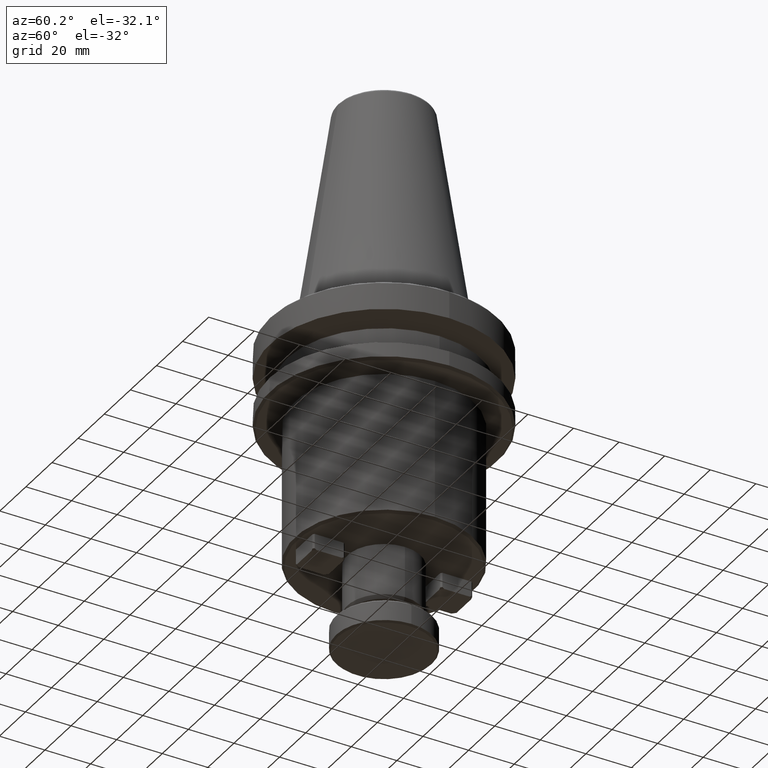
[diagram: clean part render]
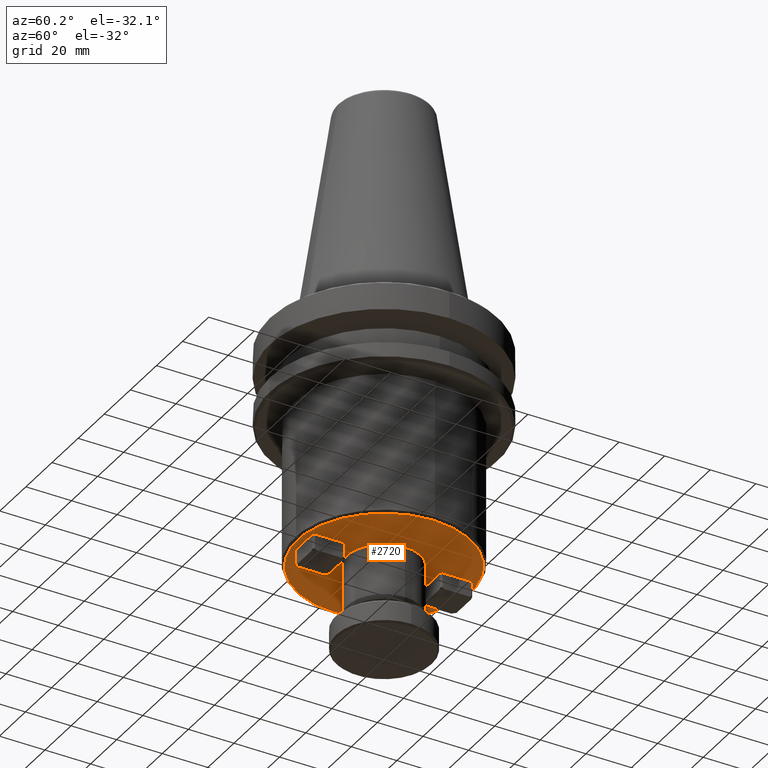
[diagram: same view with one face highlighted and labeled with its STEP entity id]
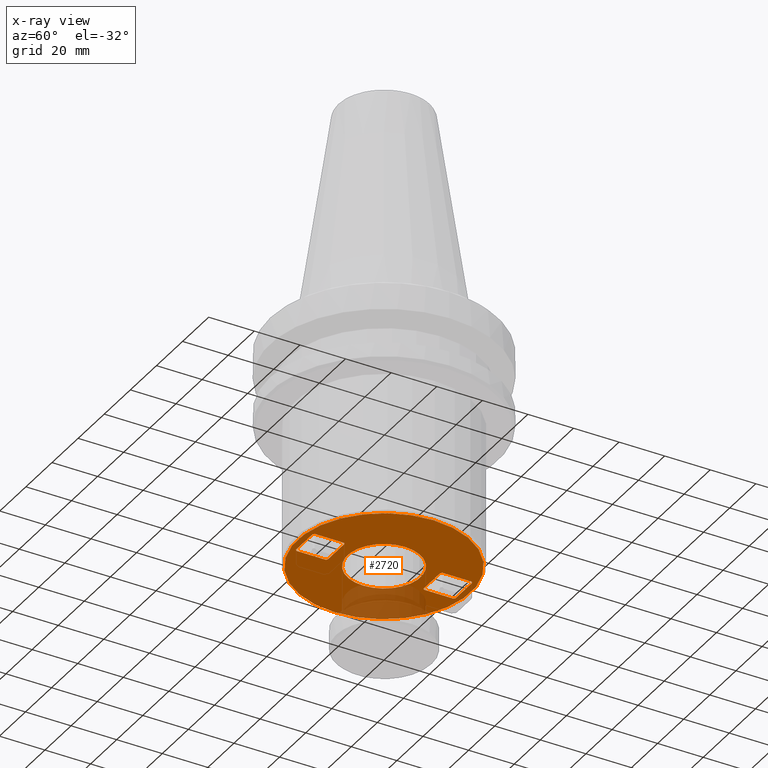
[diagram: x-ray of the same camera — body ghosted, the highlighted face saturated]
A machine part, auxiliary view. The second image highlights one B-rep face of the part: STEP entity #2720.
The next image is the same camera in x-ray: the body ghosted, the highlighted face saturated — about 20% of this face is hidden behind the body in this view.
In plain terms, the highlighted planar face has unit normal (0, 0, -1).
Its self-contained STEP definition (entity closure, byte-faithful):
#7 = ORIENTED_EDGE ( 'NONE', *, *, #1402, .T. ) ;
#44 = ORIENTED_EDGE ( 'NONE', *, *, #1321, .T. ) ;
#63 = VERTEX_POINT ( 'NONE', #2098 ) ;
#74 = VERTEX_POINT ( 'NONE', #2305 ) ;
#83 = LINE ( 'NONE', #475, #2435 ) ;
#86 = LINE ( 'NONE', #1375, #2302 ) ;
#90 = VERTEX_POINT ( 'NONE', #2089 ) ;
#93 = VERTEX_POINT ( 'NONE', #2299 ) ;
#102 = VERTEX_POINT ( 'NONE', #2218 ) ;
#143 = DIRECTION ( 'NONE',  ( 0.7071067811865638900, -0.7071067811865311400, -0.0000000000000000000 ) ) ;
#147 = CARTESIAN_POINT ( 'NONE',  ( 7.000000000000000000, 34.40000000000001300, -100.0000000000000000 ) ) ;
#158 = AXIS2_PLACEMENT_3D ( 'NONE', #2666, #1684, #2349 ) ;
#162 = VECTOR ( 'NONE', #1165, 1000.000000000000000 ) ;
#163 = ORIENTED_EDGE ( 'NONE', *, *, #1828, .T. ) ;
#182 = EDGE_CURVE ( 'NONE', #1954, #327, #1276, .T. ) ;
#187 = LINE ( 'NONE', #514, #610 ) ;
#191 = ORIENTED_EDGE ( 'NONE', *, *, #972, .T. ) ;
#245 = EDGE_LOOP ( 'NONE', ( #1222, #2560 ) ) ;
#273 = LINE ( 'NONE', #1171, #162 ) ;
#280 = DIRECTION ( 'NONE',  ( 1.000000000000000000, -0.0000000000000000000, 0.0000000000000000000 ) ) ;
#282 = FACE_BOUND ( 'NONE', #2536, .T. ) ;
#290 = CARTESIAN_POINT ( 'NONE',  ( 0.0000000000000000000, 20.99999999999999600, -100.0000000000000000 ) ) ;
#294 = LINE ( 'NONE', #147, #666 ) ;
#295 = VERTEX_POINT ( 'NONE', #1800 ) ;
#296 = EDGE_CURVE ( 'NONE', #102, #63, #2263, .T. ) ;
#312 = LINE ( 'NONE', #2132, #2682 ) ;
#327 = VERTEX_POINT ( 'NONE', #1758 ) ;
#370 = LINE ( 'NONE', #1821, #2128 ) ;
#385 = VERTEX_POINT ( 'NONE', #1658 ) ;
#415 = VECTOR ( 'NONE', #280, 1000.000000000000000 ) ;
#430 = VERTEX_POINT ( 'NONE', #1588 ) ;
#442 = VERTEX_POINT ( 'NONE', #1541 ) ;
#471 = DIRECTION ( 'NONE',  ( -0.0000000000000000000, -1.000000000000000000, -0.0000000000000000000 ) ) ;
#475 = CARTESIAN_POINT ( 'NONE',  ( -7.000000000000000000, 0.0000000000000000000, -100.0000000000000000 ) ) ;
#486 = VERTEX_POINT ( 'NONE', #1502 ) ;
#496 = DIRECTION ( 'NONE',  ( 1.000000000000000000, 0.0000000000000000000, 0.0000000000000000000 ) ) ;
#497 = AXIS2_PLACEMENT_3D ( 'NONE', #2736, #2442, #1257 ) ;
#498 = DIRECTION ( 'NONE',  ( 0.0000000000000000000, 0.0000000000000000000, 1.000000000000000000 ) ) ;
#500 = CARTESIAN_POINT ( 'NONE',  ( 0.0000000000000000000, 0.0000000000000000000, -99.99999999999998600 ) ) ;
#501 = CARTESIAN_POINT ( 'NONE',  ( 6.400000000000010100, 20.99999999999999600, -100.0000000000000000 ) ) ;
#514 = CARTESIAN_POINT ( 'NONE',  ( 0.0000000000000000000, -34.99999999999999300, -100.0000000000000000 ) ) ;
#520 = DIRECTION ( 'NONE',  ( 1.000000000000000000, -0.0000000000000000000, 0.0000000000000000000 ) ) ;
#540 = ORIENTED_EDGE ( 'NONE', *, *, #296, .T. ) ;
#554 = EDGE_CURVE ( 'NONE', #1349, #295, #86, .T. ) ;
#581 = CARTESIAN_POINT ( 'NONE',  ( -6.999999999999993800, 0.0000000000000000000, -100.0000000000000000 ) ) ;
#585 = LINE ( 'NONE', #1090, #2405 ) ;
#598 = CIRCLE ( 'NONE', #2532, 37.99999999999999300 ) ;
#610 = VECTOR ( 'NONE', #520, 1000.000000000000000 ) ;
#645 = VECTOR ( 'NONE', #2673, 1000.000000000000000 ) ;
#666 = VECTOR ( 'NONE', #143, 1000.000000000000000 ) ;
#697 = VECTOR ( 'NONE', #2145, 1000.000000000000100 ) ;
#718 = EDGE_CURVE ( 'NONE', #442, #1954, #273, .T. ) ;
#730 = VERTEX_POINT ( 'NONE', #1187 ) ;
#736 = VECTOR ( 'NONE', #820, 1000.000000000000000 ) ;
#758 = EDGE_CURVE ( 'NONE', #730, #430, #585, .T. ) ;
#816 = CARTESIAN_POINT ( 'NONE',  ( 7.000000000000000900, 34.40000000000001300, -100.0000000000000000 ) ) ;
#819 = VECTOR ( 'NONE', #2129, 1000.000000000000000 ) ;
#820 = DIRECTION ( 'NONE',  ( -0.0000000000000000000, -1.000000000000000000, -0.0000000000000000000 ) ) ;
#831 = CARTESIAN_POINT ( 'NONE',  ( -7.000000000000004400, -34.40000000000001300, -100.0000000000000000 ) ) ;
#839 = ORIENTED_EDGE ( 'NONE', *, *, #758, .T. ) ;
#857 = CARTESIAN_POINT ( 'NONE',  ( -7.000000000000008000, -34.40000000000000600, -100.0000000000000000 ) ) ;
#931 = LINE ( 'NONE', #290, #415 ) ;
#942 = ORIENTED_EDGE ( 'NONE', *, *, #1637, .F. ) ;
#955 = DIRECTION ( 'NONE',  ( -0.7071067811865470200, -0.7071067811865480200, -0.0000000000000000000 ) ) ;
#972 = EDGE_CURVE ( 'NONE', #430, #385, #1723, .T. ) ;
#973 = CARTESIAN_POINT ( 'NONE',  ( -6.399999999999949700, -20.99999999999999600, -100.0000000000000000 ) ) ;
#1051 = VECTOR ( 'NONE', #955, 1000.000000000000000 ) ;
#1090 = CARTESIAN_POINT ( 'NONE',  ( 0.0000000000000000000, -20.99999999999999600, -100.0000000000000000 ) ) ;
#1113 = DIRECTION ( 'NONE',  ( -1.000000000000000000, 0.0000000000000000000, -0.0000000000000000000 ) ) ;
#1129 = VERTEX_POINT ( 'NONE', #831 ) ;
#1150 = CARTESIAN_POINT ( 'NONE',  ( -16.00000000000001100, 1.959434878635766700E-015, -99.99999999999998600 ) ) ;
#1155 = CIRCLE ( 'NONE', #2086, 16.00000000000001100 ) ;
#1160 = CARTESIAN_POINT ( 'NONE',  ( -7.000000000000002700, 21.59999999999998700, -100.0000000000000000 ) ) ;
#1165 = DIRECTION ( 'NONE',  ( -1.000000000000000000, 0.0000000000000000000, -0.0000000000000000000 ) ) ;
#1171 = CARTESIAN_POINT ( 'NONE',  ( 0.0000000000000000000, 35.00000000000000000, -100.0000000000000000 ) ) ;
#1187 = CARTESIAN_POINT ( 'NONE',  ( 6.399999999999977300, -20.99999999999999600, -100.0000000000000000 ) ) ;
#1197 = VERTEX_POINT ( 'NONE', #816 ) ;
#1222 = ORIENTED_EDGE ( 'NONE', *, *, #2044, .F. ) ;
#1224 = EDGE_CURVE ( 'NONE', #385, #1129, #2017, .T. ) ;
#1226 = EDGE_LOOP ( 'NONE', ( #2016, #163 ) ) ;
#1257 = DIRECTION ( 'NONE',  ( 1.000000000000000000, 0.0000000000000000000, 0.0000000000000000000 ) ) ;
#1263 = CIRCLE ( 'NONE', #497, 16.00000000000001100 ) ;
#1276 = LINE ( 'NONE', #2021, #645 ) ;
#1318 = ORIENTED_EDGE ( 'NONE', *, *, #2092, .T. ) ;
#1321 = EDGE_CURVE ( 'NONE', #486, #102, #187, .T. ) ;
#1327 = EDGE_CURVE ( 'NONE', #74, #2667, #1155, .T. ) ;
#1330 = LINE ( 'NONE', #2126, #819 ) ;
#1342 = DIRECTION ( 'NONE',  ( 0.7071067811865311400, 0.7071067811865638900, -0.0000000000000000000 ) ) ;
#1349 = VERTEX_POINT ( 'NONE', #501 ) ;
#1352 = ORIENTED_EDGE ( 'NONE', *, *, #554, .T. ) ;
#1375 = CARTESIAN_POINT ( 'NONE',  ( 6.400000000000009200, 20.99999999999999300, -100.0000000000000000 ) ) ;
#1402 = EDGE_CURVE ( 'NONE', #327, #2445, #83, .T. ) ;
#1442 = FACE_BOUND ( 'NONE', #1226, .T. ) ;
#1470 = CARTESIAN_POINT ( 'NONE',  ( -37.99999999999999300, 4.714890176717310300E-015, -100.0000000000000000 ) ) ;
#1491 = ORIENTED_EDGE ( 'NONE', *, *, #2230, .F. ) ;
#1502 = CARTESIAN_POINT ( 'NONE',  ( -6.399999999999992400, -34.99999999999999300, -100.0000000000000000 ) ) ;
#1541 = CARTESIAN_POINT ( 'NONE',  ( 6.399999999999982600, 35.00000000000000000, -100.0000000000000000 ) ) ;
#1560 = EDGE_CURVE ( 'NONE', #90, #1349, #931, .T. ) ;
#1567 = ORIENTED_EDGE ( 'NONE', *, *, #718, .T. ) ;
#1572 = VECTOR ( 'NONE', #1791, 1000.000000000000000 ) ;
#1588 = CARTESIAN_POINT ( 'NONE',  ( -6.399999999999950600, -20.99999999999999600, -100.0000000000000000 ) ) ;
#1637 = EDGE_CURVE ( 'NONE', #442, #1197, #294, .T. ) ;
#1646 = ORIENTED_EDGE ( 'NONE', *, *, #1224, .T. ) ;
#1658 = CARTESIAN_POINT ( 'NONE',  ( -6.999999999999993800, -21.60000000000004400, -100.0000000000000000 ) ) ;
#1684 = DIRECTION ( 'NONE',  ( 0.0000000000000000000, 0.0000000000000000000, -1.000000000000000000 ) ) ;
#1723 = LINE ( 'NONE', #973, #1051 ) ;
#1758 = CARTESIAN_POINT ( 'NONE',  ( -7.000000000000000900, 34.39999999999998400, -100.0000000000000000 ) ) ;
#1791 = DIRECTION ( 'NONE',  ( 0.7071067811865311400, 0.7071067811865638900, -0.0000000000000000000 ) ) ;
#1800 = CARTESIAN_POINT ( 'NONE',  ( 6.999999999999997300, 21.60000000000000900, -100.0000000000000000 ) ) ;
#1818 = CARTESIAN_POINT ( 'NONE',  ( 6.400000000000002100, -34.99999999999999300, -100.0000000000000000 ) ) ;
#1821 = CARTESIAN_POINT ( 'NONE',  ( 6.999999999999998200, 0.0000000000000000000, -100.0000000000000000 ) ) ;
#1822 = ORIENTED_EDGE ( 'NONE', *, *, #2242, .F. ) ;
#1823 = EDGE_CURVE ( 'NONE', #486, #1129, #2585, .T. ) ;
#1828 = EDGE_CURVE ( 'NONE', #2667, #74, #1263, .T. ) ;
#1834 = VECTOR ( 'NONE', #2372, 1000.000000000000000 ) ;
#1853 = ORIENTED_EDGE ( 'NONE', *, *, #1560, .T. ) ;
#1907 = CIRCLE ( 'NONE', #2446, 37.99999999999999300 ) ;
#1954 = VERTEX_POINT ( 'NONE', #2584 ) ;
#1975 = DIRECTION ( 'NONE',  ( -0.7071067811865632300, 0.7071067811865318100, -0.0000000000000000000 ) ) ;
#1995 = EDGE_CURVE ( 'NONE', #2647, #93, #1907, .T. ) ;
#2016 = ORIENTED_EDGE ( 'NONE', *, *, #1327, .T. ) ;
#2017 = LINE ( 'NONE', #581, #736 ) ;
#2019 = EDGE_LOOP ( 'NONE', ( #44, #540, #1318, #1822, #839, #191, #1646, #2628 ) ) ;
#2021 = CARTESIAN_POINT ( 'NONE',  ( -6.400000000000011000, 35.00000000000000000, -100.0000000000000000 ) ) ;
#2044 = EDGE_CURVE ( 'NONE', #93, #2647, #598, .T. ) ;
#2047 = DIRECTION ( 'NONE',  ( 0.0000000000000000000, 1.000000000000000000, 0.0000000000000000000 ) ) ;
#2049 = PLANE ( 'NONE',  #158 ) ;
#2054 = VERTEX_POINT ( 'NONE', #2737 ) ;
#2086 = AXIS2_PLACEMENT_3D ( 'NONE', #500, #498, #496 ) ;
#2089 = CARTESIAN_POINT ( 'NONE',  ( -6.399999999999985300, 20.99999999999999600, -100.0000000000000000 ) ) ;
#2092 = EDGE_CURVE ( 'NONE', #63, #2054, #2420, .T. ) ;
#2098 = CARTESIAN_POINT ( 'NONE',  ( 6.999999999999993800, -34.39999999999997700, -100.0000000000000000 ) ) ;
#2126 = CARTESIAN_POINT ( 'NONE',  ( 6.999999999999992900, -21.59999999999998700, -100.0000000000000000 ) ) ;
#2128 = VECTOR ( 'NONE', #2047, 1000.000000000000000 ) ;
#2129 = DIRECTION ( 'NONE',  ( 0.7071067811865638900, -0.7071067811865311400, -0.0000000000000000000 ) ) ;
#2132 = CARTESIAN_POINT ( 'NONE',  ( -7.000000000000002700, 21.59999999999998700, -100.0000000000000000 ) ) ;
#2145 = DIRECTION ( 'NONE',  ( -0.7071067811865632300, 0.7071067811865318100, -0.0000000000000000000 ) ) ;
#2160 = CARTESIAN_POINT ( 'NONE',  ( 0.0000000000000000000, 0.0000000000000000000, -100.0000000000000000 ) ) ;
#2164 = FACE_OUTER_BOUND ( 'NONE', #245, .T. ) ;
#2218 = CARTESIAN_POINT ( 'NONE',  ( 6.400000000000003000, -34.99999999999999300, -100.0000000000000000 ) ) ;
#2225 = EDGE_CURVE ( 'NONE', #295, #1197, #370, .T. ) ;
#2230 = EDGE_CURVE ( 'NONE', #90, #2445, #312, .T. ) ;
#2242 = EDGE_CURVE ( 'NONE', #730, #2054, #1330, .T. ) ;
#2260 = ORIENTED_EDGE ( 'NONE', *, *, #182, .T. ) ;
#2263 = LINE ( 'NONE', #1818, #1572 ) ;
#2266 = DIRECTION ( 'NONE',  ( 1.000000000000000000, 0.0000000000000000000, 0.0000000000000000000 ) ) ;
#2270 = DIRECTION ( 'NONE',  ( 0.0000000000000000000, -0.0000000000000000000, 1.000000000000000000 ) ) ;
#2299 = CARTESIAN_POINT ( 'NONE',  ( 37.99999999999999300, 0.0000000000000000000, -100.0000000000000000 ) ) ;
#2302 = VECTOR ( 'NONE', #1342, 1000.000000000000000 ) ;
#2305 = CARTESIAN_POINT ( 'NONE',  ( 16.00000000000001100, 0.0000000000000000000, -99.99999999999998600 ) ) ;
#2309 = DIRECTION ( 'NONE',  ( 1.000000000000000000, 0.0000000000000000000, 0.0000000000000000000 ) ) ;
#2313 = DIRECTION ( 'NONE',  ( 0.0000000000000000000, -0.0000000000000000000, 1.000000000000000000 ) ) ;
#2349 = DIRECTION ( 'NONE',  ( -1.000000000000000000, 0.0000000000000000000, -0.0000000000000000000 ) ) ;
#2372 = DIRECTION ( 'NONE',  ( 0.0000000000000000000, 1.000000000000000000, 0.0000000000000000000 ) ) ;
#2392 = CARTESIAN_POINT ( 'NONE',  ( 6.999999999999991100, 0.0000000000000000000, -100.0000000000000000 ) ) ;
#2405 = VECTOR ( 'NONE', #1113, 1000.000000000000000 ) ;
#2420 = LINE ( 'NONE', #2392, #1834 ) ;
#2435 = VECTOR ( 'NONE', #471, 1000.000000000000000 ) ;
#2442 = DIRECTION ( 'NONE',  ( 0.0000000000000000000, 0.0000000000000000000, 1.000000000000000000 ) ) ;
#2445 = VERTEX_POINT ( 'NONE', #1160 ) ;
#2446 = AXIS2_PLACEMENT_3D ( 'NONE', #2160, #2270, #2266 ) ;
#2532 = AXIS2_PLACEMENT_3D ( 'NONE', #2721, #2313, #2309 ) ;
#2536 = EDGE_LOOP ( 'NONE', ( #1853, #1352, #2578, #942, #1567, #2260, #7, #1491 ) ) ;
#2560 = ORIENTED_EDGE ( 'NONE', *, *, #1995, .F. ) ;
#2578 = ORIENTED_EDGE ( 'NONE', *, *, #2225, .T. ) ;
#2584 = CARTESIAN_POINT ( 'NONE',  ( -6.400000000000010100, 35.00000000000000000, -100.0000000000000000 ) ) ;
#2585 = LINE ( 'NONE', #857, #697 ) ;
#2601 = FACE_BOUND ( 'NONE', #2019, .T. ) ;
#2628 = ORIENTED_EDGE ( 'NONE', *, *, #1823, .F. ) ;
#2647 = VERTEX_POINT ( 'NONE', #1470 ) ;
#2666 = CARTESIAN_POINT ( 'NONE',  ( 0.0000000000000000000, 0.0000000000000000000, -100.0000000000000000 ) ) ;
#2667 = VERTEX_POINT ( 'NONE', #1150 ) ;
#2673 = DIRECTION ( 'NONE',  ( -0.7071067811865311400, -0.7071067811865638900, -0.0000000000000000000 ) ) ;
#2682 = VECTOR ( 'NONE', #1975, 1000.000000000000100 ) ;
#2720 = ADVANCED_FACE ( 'NONE', ( #2164, #1442, #282, #2601 ), #2049, .T. ) ;
#2721 = CARTESIAN_POINT ( 'NONE',  ( 0.0000000000000000000, 0.0000000000000000000, -100.0000000000000000 ) ) ;
#2736 = CARTESIAN_POINT ( 'NONE',  ( 0.0000000000000000000, 0.0000000000000000000, -99.99999999999998600 ) ) ;
#2737 = CARTESIAN_POINT ( 'NONE',  ( 6.999999999999992000, -21.59999999999998700, -100.0000000000000000 ) ) ;